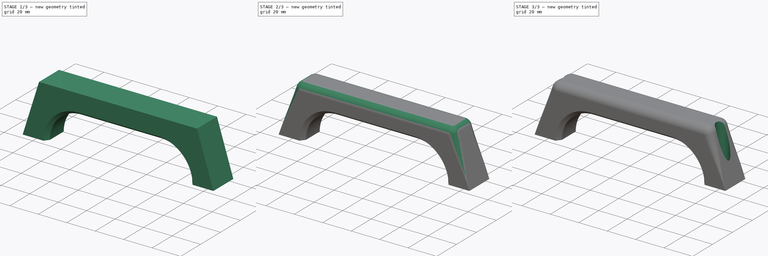
[diagram: build sequence overview — one tinted view per stage of 3, left to right]
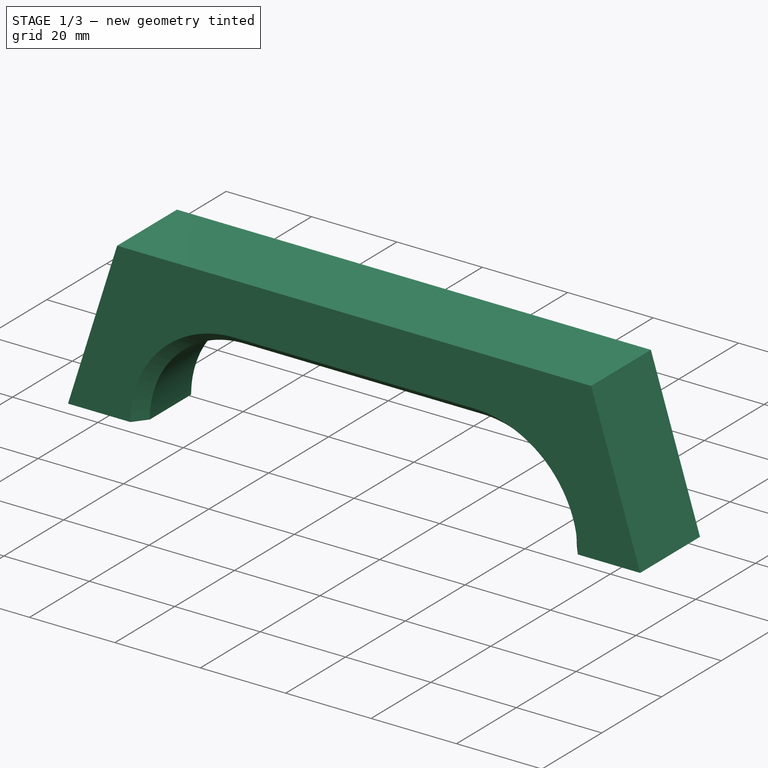
[diagram: stage 1 of 3 — iso view after this stage's code; geometry added in this stage tinted green]
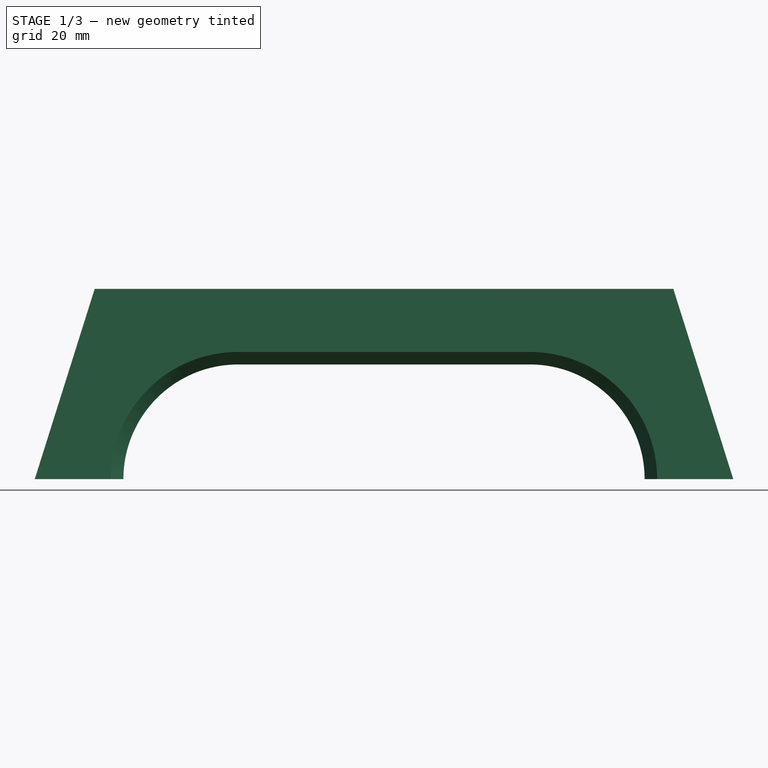
[diagram: stage 1 of 3 — front view after this stage's code; geometry added in this stage tinted green]
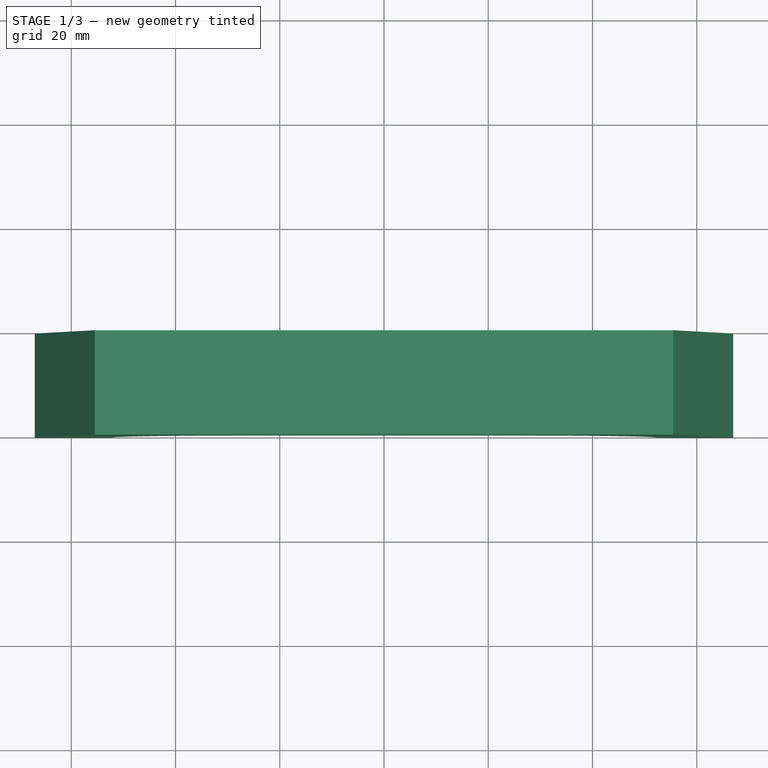
[diagram: stage 1 of 3 — top view after this stage's code; geometry added in this stage tinted green]
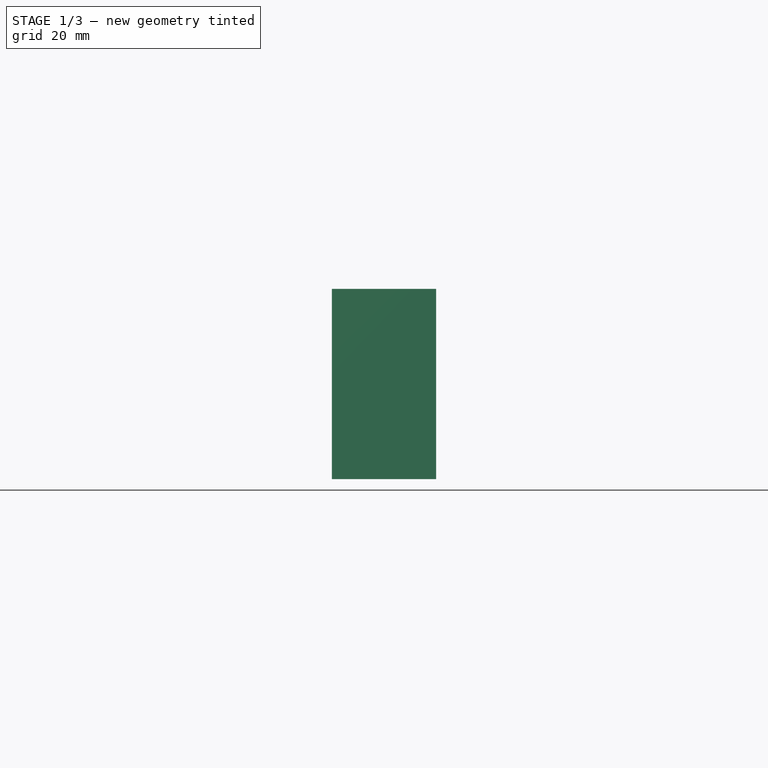
[diagram: stage 1 of 3 — right view after this stage's code; geometry added in this stage tinted green]
FCSTD DOCUMENT  (FreeCAD 0.14R3692 (Git))
Label: addon-handle
License: GPLv3
LicenseURL: https://gnu.org/licenses/gpl.html
objects: Sketcher::SketchObject×3, PartDesign::Pocket×2, Part::Feature×2, PartDesign::Pad×1, Part::Chamfer×1, Part::Fillet×1, App::DocumentObjectGroup×1
note: 13 computed .brp shape members not serialized (recipe doc carries the construction recipe); baked Part::Feature solids carry a one-line shape summary decoded from their .brp

FEATURE [Sketcher::SketchObject] Sketch  label="handle-sketch"
  Placement = pos=(0,0,0) rot=(1,0,0;1.5708rad)
  sketch-geometry (8):
    g0: LineSegment StartX=-67 StartY=-5e-12 StartZ=0 EndX=-50 EndY=-5e-12 EndZ=0
    g1: ArcOfCircle CenterX=-28 CenterY=0 CenterZ=0 NormalX=0 NormalY=0 NormalZ=1 Radius=22 StartAngle=1.5708 EndAngle=3.14159
    g2: LineSegment StartX=50 StartY=0 StartZ=0 EndX=67 EndY=0 EndZ=0
    g3: ArcOfCircle CenterX=28 CenterY=0 CenterZ=0 NormalX=0 NormalY=0 NormalZ=1 Radius=22 StartAngle=0 EndAngle=1.5708
    g4: LineSegment StartX=28 StartY=22 StartZ=0 EndX=-28 EndY=22 EndZ=0
    g5: LineSegment StartX=-55.5 StartY=36.5 StartZ=0 EndX=55.5 EndY=36.5 EndZ=0
    g6: LineSegment StartX=-55.5 StartY=36.5 StartZ=0 EndX=-67 EndY=-5e-12 EndZ=0
    g7: LineSegment StartX=55.5 StartY=36.5 StartZ=0 EndX=67 EndY=0 EndZ=0
  constraints (23):
    c: Radius(g1) = 22
    c: Coincident(g1,g0)
    c: Coincident(g0,g6)
    c: Coincident(g6,g5)
    c: Coincident(g4,g1)
    c: Equal(g1,g3)
    c: Coincident(g3,g4)
    c: Coincident(g3,g2)
    c: Coincident(g7,g2)
    c: Coincident(g5,g7)
    c: Tangent(g1,g4)
    c: Tangent(g3,g4)
    c: PointOnObject(g1,g-1)
    c: Symmetric(g1,g3,g-1)
    c: Horizontal(g0)
    c: PointOnObject(g0,g-1)
    c: Symmetric(g5,g5,g-2)
    c: Symmetric(g0,g2,g-2)
    c: DistanceX(g0,g2) = 100
    c: DistanceX(g0,g0) = 17
    c: DistanceX(g5) = 111
    c: DistanceY(g5,g1) = -14.5
    c: Horizontal(g2)
FEATURE [PartDesign::Pad] Pad  label="handle-pad"
  Length = 20
  Length2 = 100
  Placement = pos=(0,0,0) rot=(1,0,0;1.5708rad)
  Sketch = -> Sketch
  Type = 0
FEATURE [Part::Chamfer] Chamfer  label="inside-chamfer"
  Base = -> Pad
  Edges = 6 edges: [Edge9 r1=3.1 r2=2.4,Edge10 r1=3.1 r2=2.4,Edge12 r1=3.1 r2=2.4,Edge13 r1=3.1 r2=2.4,Edge15 r1=3.1 r2=2.4,Edge16 r1=3.1 r2=2.4]
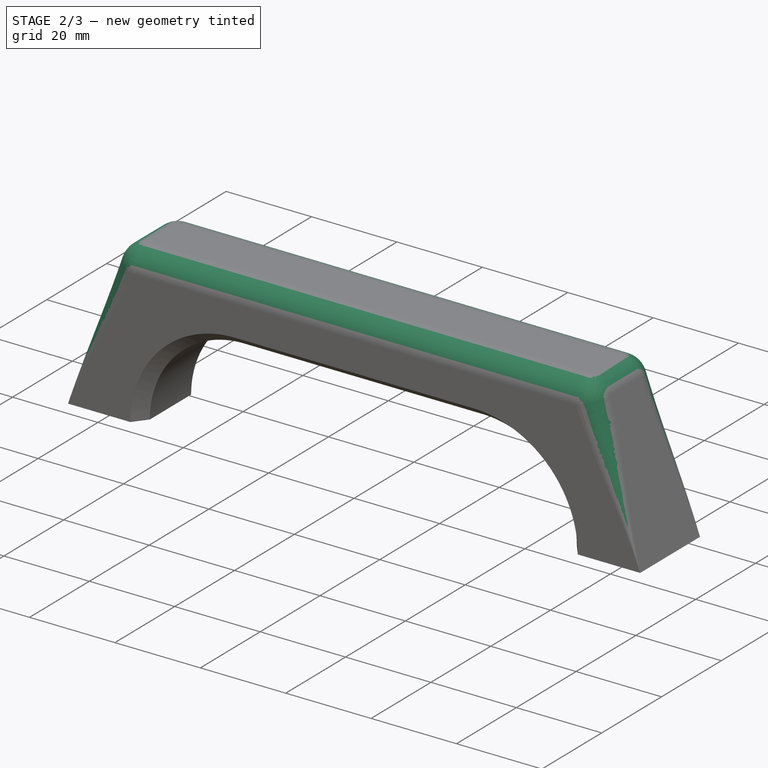
[diagram: stage 2 of 3 — iso view after this stage's code; geometry added in this stage tinted green]
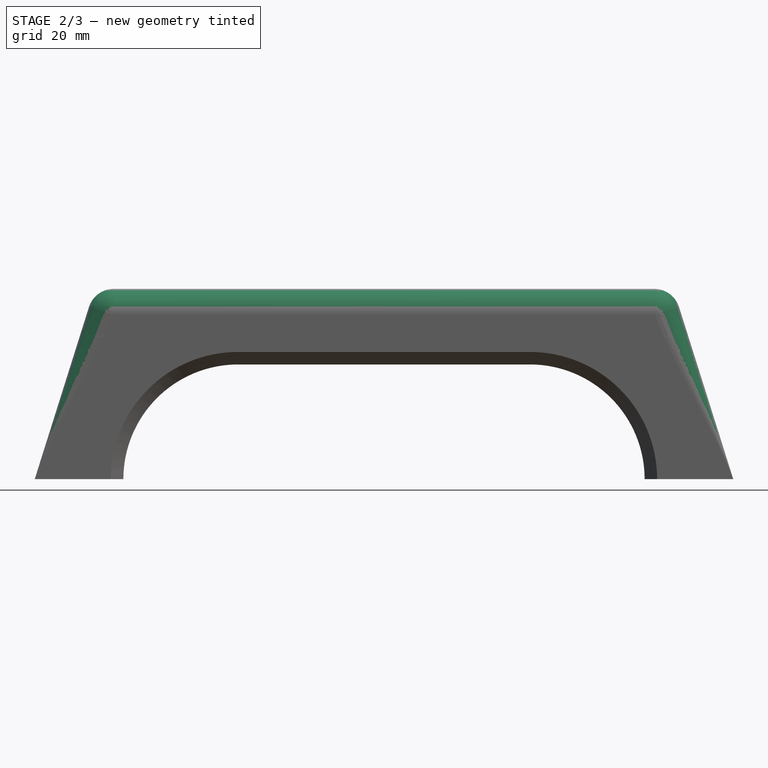
[diagram: stage 2 of 3 — front view after this stage's code; geometry added in this stage tinted green]
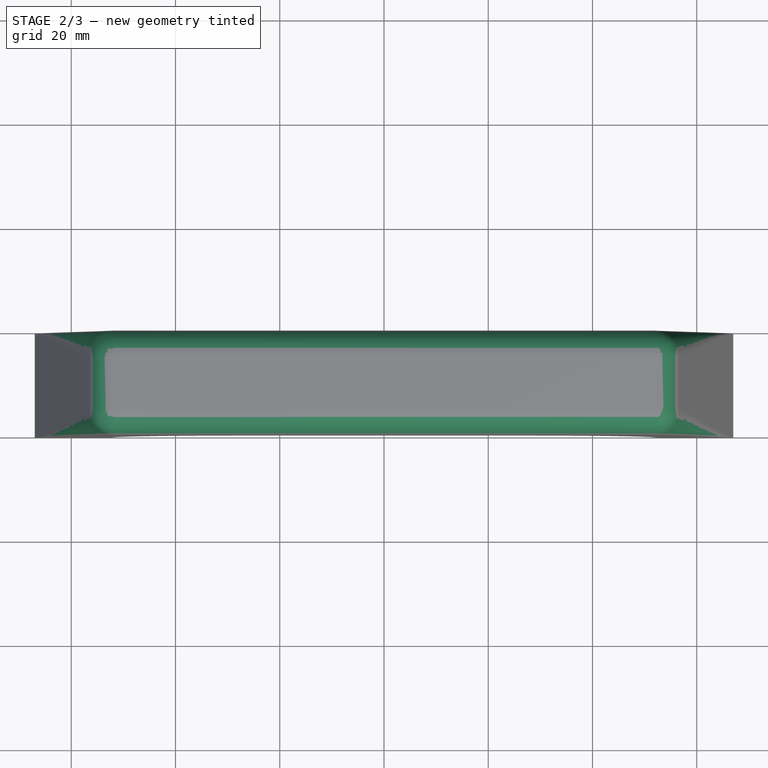
[diagram: stage 2 of 3 — top view after this stage's code; geometry added in this stage tinted green]
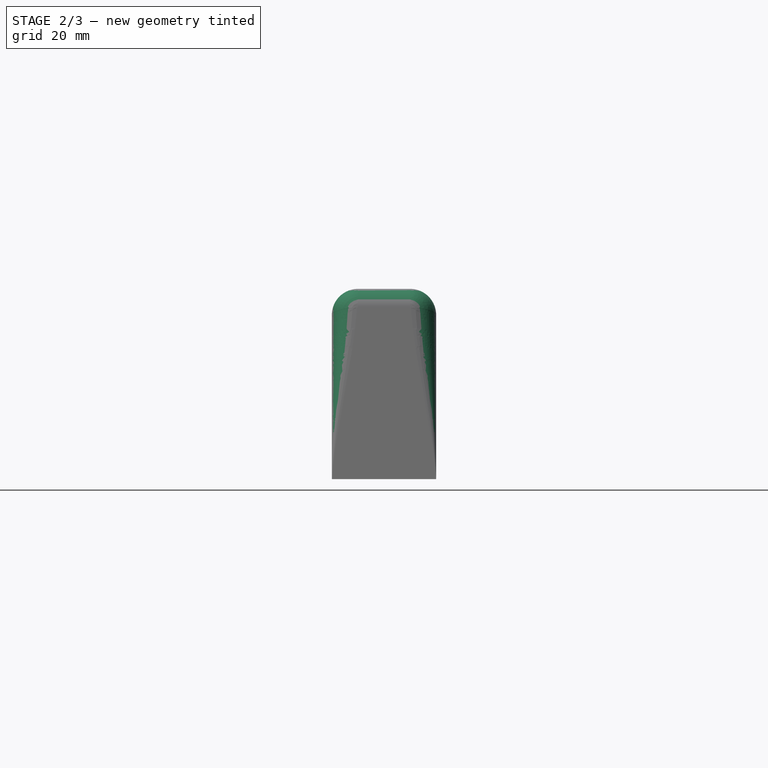
[diagram: stage 2 of 3 — right view after this stage's code; geometry added in this stage tinted green]
FEATURE [Part::Fillet] Fillet  label="outside-fillet"
  Base = -> Chamfer
  Edges = 8 edges: [Edge14 r1=5 r2=0,Edge16 r=5,Edge18 r1=5 r2=0,Edge20 r1=5 r2=0,Edge22 r=5,Edge24 r1=5 r2=0,Edge26 r=5,Edge32 r=5]
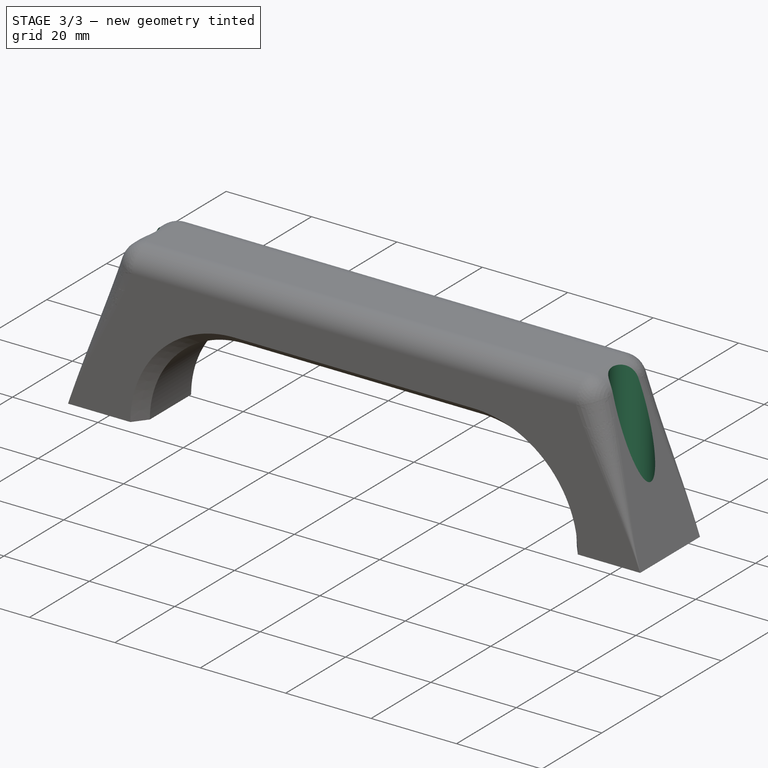
[diagram: stage 3 of 3 — iso view after this stage's code; geometry added in this stage tinted green]
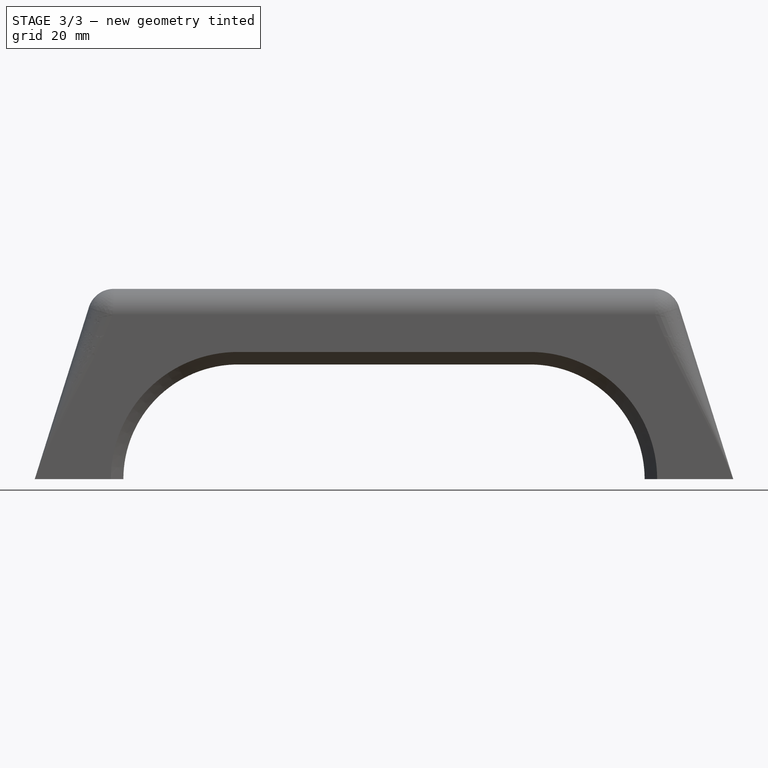
[diagram: stage 3 of 3 — front view after this stage's code; geometry added in this stage tinted green]
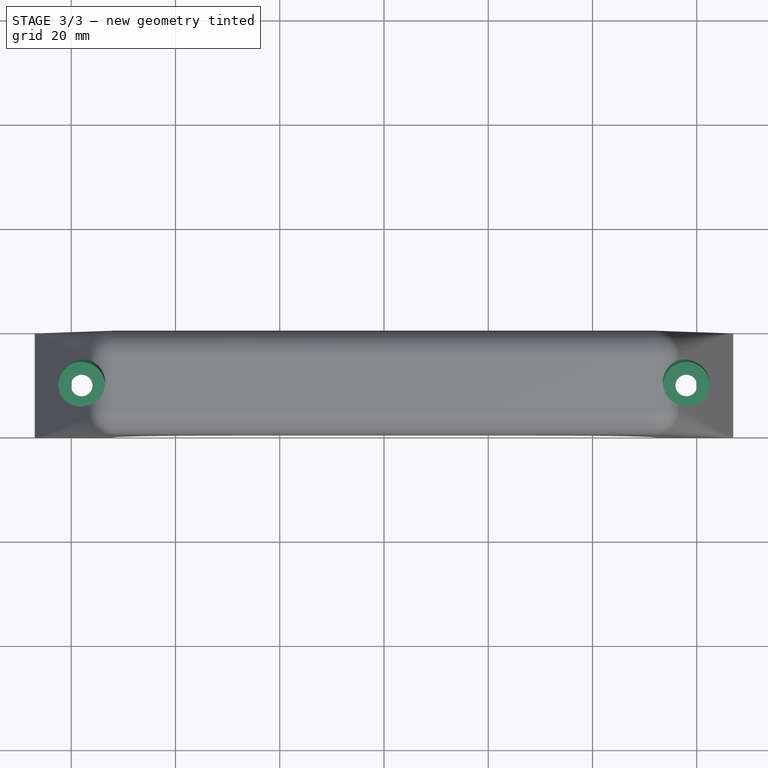
[diagram: stage 3 of 3 — top view after this stage's code; geometry added in this stage tinted green]
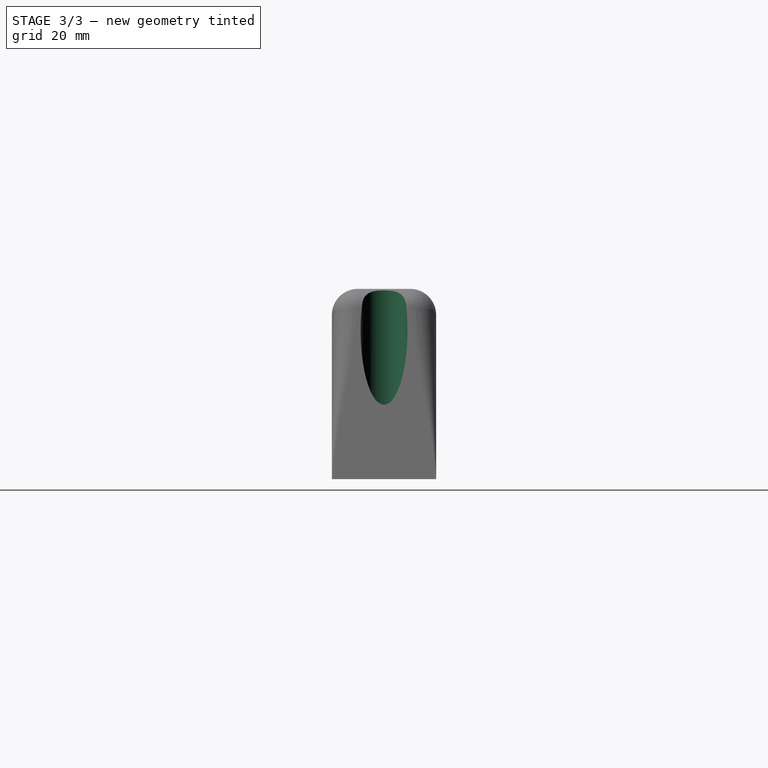
[diagram: stage 3 of 3 — right view after this stage's code; geometry added in this stage tinted green]
FEATURE [Sketcher::SketchObject] Sketch002  label="screw-heads-sketch"
  Placement = pos=(0,0,36.5) rot=(0,0,1;0rad)
  Support = -> Fillet [Face13]
  sketch-geometry (2):
    g0: Circle CenterX=-58 CenterY=-10 CenterZ=0 NormalX=0 NormalY=0 NormalZ=1 Radius=4.5
    g1: Circle CenterX=58 CenterY=-10 CenterZ=0 NormalX=0 NormalY=0 NormalZ=1 Radius=4.5
  constraints (5):
    c: Radius(g0) = 4.5
    c: Equal(g0,g1)
    c: Symmetric(g0,g1,g-2)
    c: DistanceX(g0,g1) = 116
    c: DistanceY(g-1,g0) = -10
FEATURE [PartDesign::Pocket] Pocket  label="screw-heads-pocket"
  Length = 32.5
  Sketch = -> Sketch002
  Type = 0
FEATURE [Sketcher::SketchObject] Sketch001  label="screw-holes-sketch"
  Placement = pos=(0,0,-5e-12) rot=(1,0,0;3.14159rad)
  Support = -> Pocket [Face4]
  sketch-geometry (2):
    g0: Circle CenterX=-58 CenterY=10 CenterZ=0 NormalX=0 NormalY=0 NormalZ=1 Radius=2.1
    g1: Circle CenterX=58 CenterY=10 CenterZ=0 NormalX=0 NormalY=0 NormalZ=1 Radius=2.1
  constraints (5):
    c: Symmetric(g0,g1,g-2)
    c: Radius(g0) = 2.1
    c: Equal(g0,g1)
    c: DistanceX(g0,g1) = 116
    c: DistanceY(g-1,g0) = 10
FEATURE [PartDesign::Pocket] Pocket001  label="screw-holes-pocket"
  Length = 5
  Sketch = -> Sketch001
  Type = 1
FEATURE [Part::Feature] Pocket001001  label="addon-handle"
  shape: bbox 134.9 x 20.24 x 38.29 mm, 34 faces (baked)
FEATURE [Part::Feature] Part__Feature  label="extrusion-p20n6b-200-top"
  Placement = pos=(-100,-10,-10) rot=(0,1,0;1.5708rad)
  shape: bbox 200 x 20 x 20 mm, 154 faces (baked)
FEATURE [App::DocumentObjectGroup] Grupo  label="aux"
  Group = -> [Part__Feature]
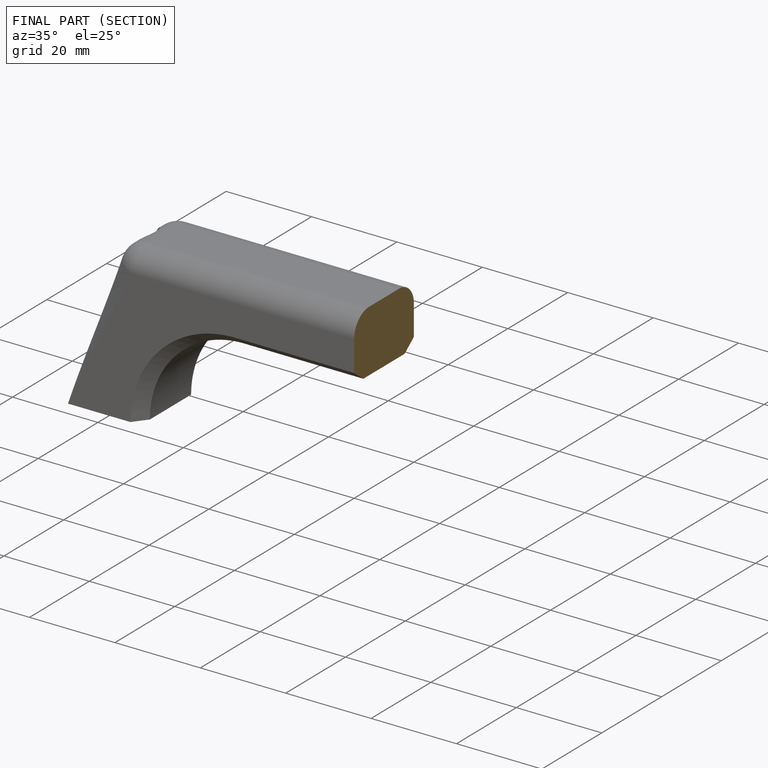
[diagram: finished part — half-section view (interior)]
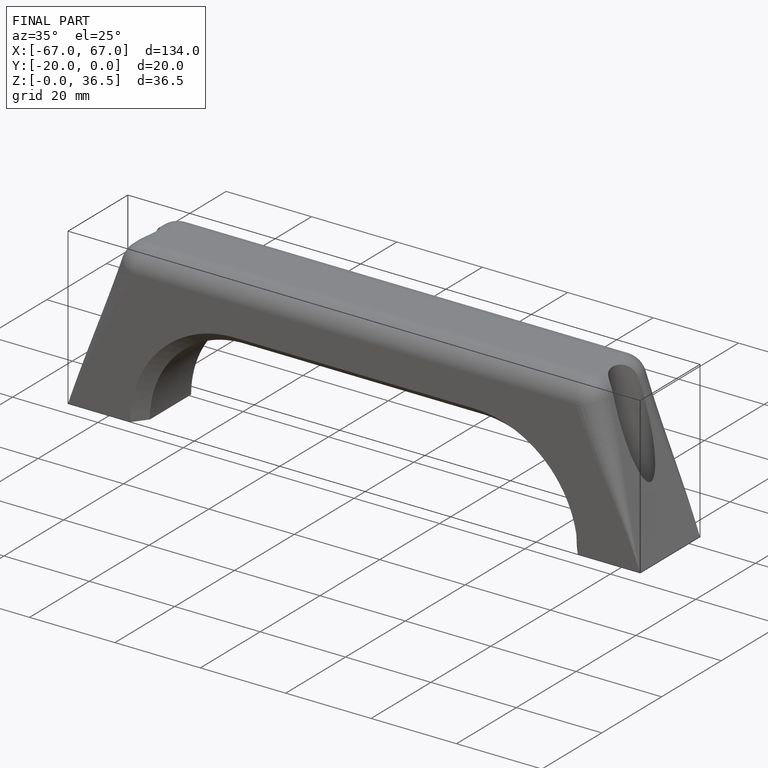
[diagram: finished part — iso view with bounding-box wireframe]
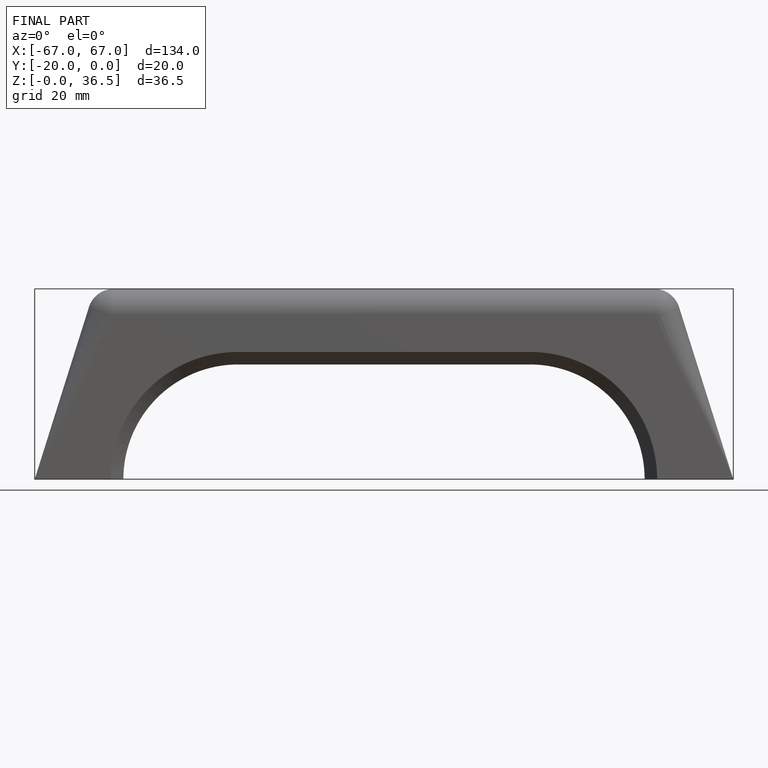
[diagram: finished part — front view with bounding-box wireframe]
